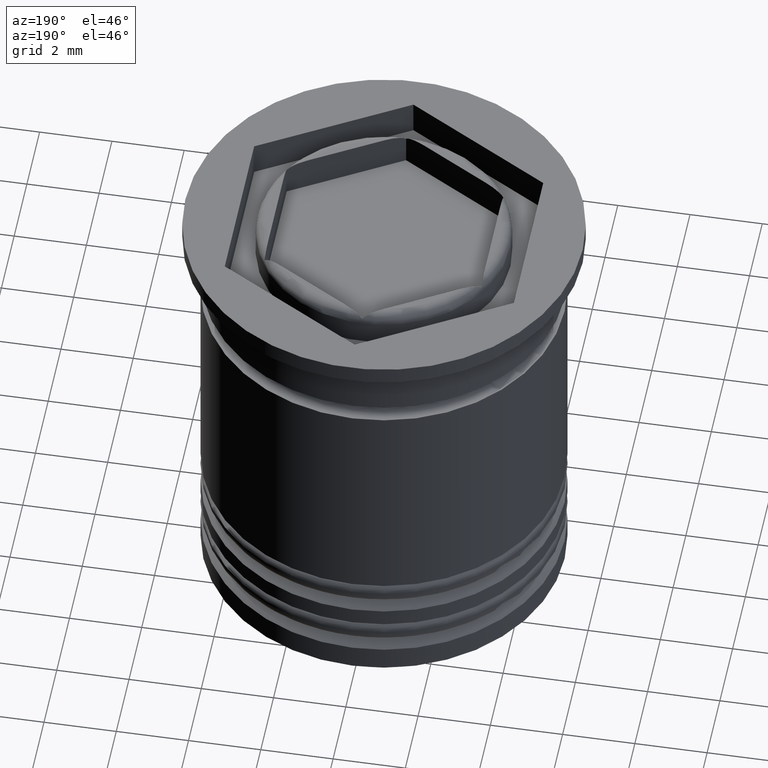
[diagram: clean part render]
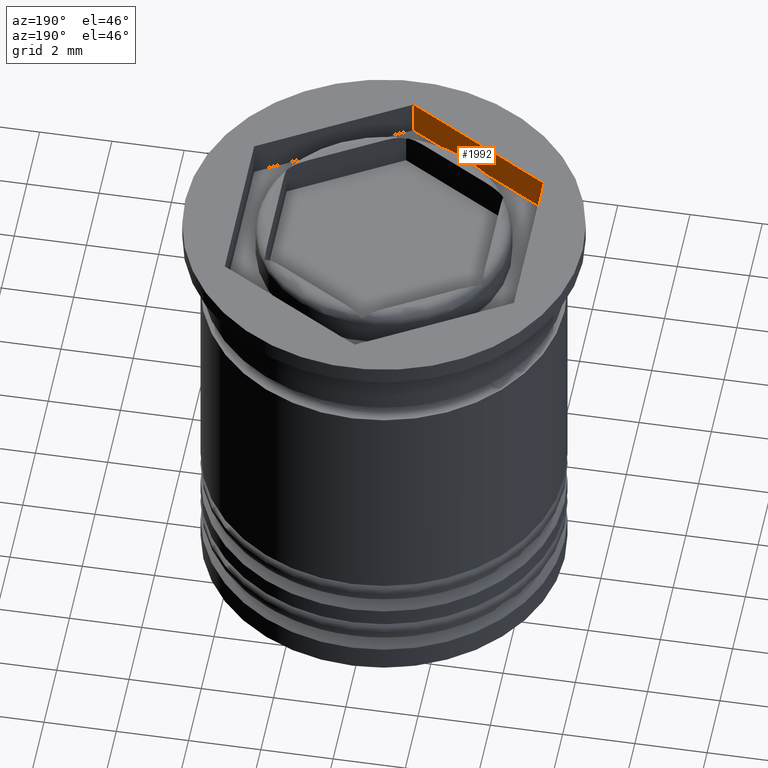
[diagram: same view with one face highlighted and labeled with its STEP entity id]
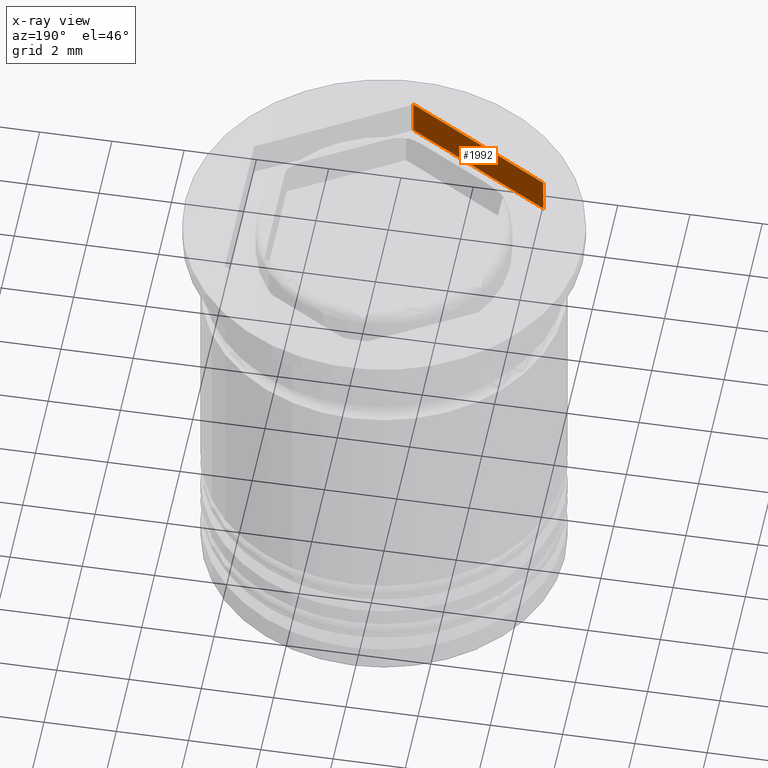
[diagram: x-ray of the same camera — body ghosted, the highlighted face saturated]
A machine part, auxiliary view. The second image highlights one B-rep face of the part: STEP entity #1992.
The next image is the same camera in x-ray: the body ghosted, the highlighted face saturated — about 0% of this face is hidden behind the body in this view.
In plain terms, the highlighted planar face has unit normal (-0.5, -0.866, 0).
Its self-contained STEP definition (entity closure, byte-faithful):
#5 = CARTESIAN_POINT ( 'NONE',  ( -4.000000000000000000, -2.309401076758503368, -1.000000000000000000 ) ) ;
#8 = LINE ( 'NONE', #5, #523 ) ;
#51 = ORIENTED_EDGE ( 'NONE', *, *, #1477, .F. ) ;
#182 = DIRECTION ( 'NONE',  ( 0.8660254037844387076, -0.4999999999999997780, 0.000000000000000000 ) ) ;
#408 = LINE ( 'NONE', #1721, #1569 ) ;
#430 = CARTESIAN_POINT ( 'NONE',  ( -4.000000000000000000, -2.309401076758503368, -1.000000000000000000 ) ) ;
#452 = AXIS2_PLACEMENT_3D ( 'NONE', #1880, #1405, #1722 ) ;
#472 = LINE ( 'NONE', #861, #1473 ) ;
#523 = VECTOR ( 'NONE', #646, 1000.000000000000114 ) ;
#646 = DIRECTION ( 'NONE',  ( 0.8660254037844387076, -0.4999999999999997780, 0.000000000000000000 ) ) ;
#681 = CARTESIAN_POINT ( 'NONE',  ( 8.334195073742550113E-16, -4.618802153517005848, -1.000000000000000000 ) ) ;
#710 = CARTESIAN_POINT ( 'NONE',  ( -4.000000000000000000, -2.309401076758503368, 0.000000000000000000 ) ) ;
#791 = LINE ( 'NONE', #1131, #908 ) ;
#861 = CARTESIAN_POINT ( 'NONE',  ( -4.000000000000000000, -2.309401076758503368, 0.000000000000000000 ) ) ;
#897 = EDGE_CURVE ( 'NONE', #1059, #912, #408, .T. ) ;
#908 = VECTOR ( 'NONE', #1302, 1000.000000000000000 ) ;
#912 = VERTEX_POINT ( 'NONE', #710 ) ;
#1059 = VERTEX_POINT ( 'NONE', #430 ) ;
#1066 = DIRECTION ( 'NONE',  ( -0.000000000000000000, -0.000000000000000000, 1.000000000000000000 ) ) ;
#1081 = PLANE ( 'NONE',  #452 ) ;
#1131 = CARTESIAN_POINT ( 'NONE',  ( 8.334195073742550113E-16, -4.618802153517005848, -1.000000000000000000 ) ) ;
#1270 = VERTEX_POINT ( 'NONE', #681 ) ;
#1302 = DIRECTION ( 'NONE',  ( -0.000000000000000000, -0.000000000000000000, 1.000000000000000000 ) ) ;
#1385 = ORIENTED_EDGE ( 'NONE', *, *, #1425, .F. ) ;
#1405 = DIRECTION ( 'NONE',  ( -0.4999999999999997780, -0.8660254037844388186, 0.000000000000000000 ) ) ;
#1416 = FACE_OUTER_BOUND ( 'NONE', #1713, .T. ) ;
#1425 = EDGE_CURVE ( 'NONE', #1270, #1899, #791, .T. ) ;
#1473 = VECTOR ( 'NONE', #182, 1000.000000000000114 ) ;
#1477 = EDGE_CURVE ( 'NONE', #1059, #1270, #8, .T. ) ;
#1529 = CARTESIAN_POINT ( 'NONE',  ( 8.334195073742550113E-16, -4.618802153517005848, 0.000000000000000000 ) ) ;
#1569 = VECTOR ( 'NONE', #1066, 1000.000000000000000 ) ;
#1665 = EDGE_CURVE ( 'NONE', #912, #1899, #472, .T. ) ;
#1668 = ORIENTED_EDGE ( 'NONE', *, *, #897, .T. ) ;
#1713 = EDGE_LOOP ( 'NONE', ( #1730, #1385, #51, #1668 ) ) ;
#1721 = CARTESIAN_POINT ( 'NONE',  ( -4.000000000000000000, -2.309401076758503368, -1.000000000000000000 ) ) ;
#1722 = DIRECTION ( 'NONE',  ( 0.8660254037844387076, -0.4999999999999997224, 0.000000000000000000 ) ) ;
#1730 = ORIENTED_EDGE ( 'NONE', *, *, #1665, .T. ) ;
#1880 = CARTESIAN_POINT ( 'NONE',  ( -4.000000000000000000, -2.309401076758503368, -1.000000000000000000 ) ) ;
#1899 = VERTEX_POINT ( 'NONE', #1529 ) ;
#1992 = ADVANCED_FACE ( 'NONE', ( #1416 ), #1081, .F. ) ;